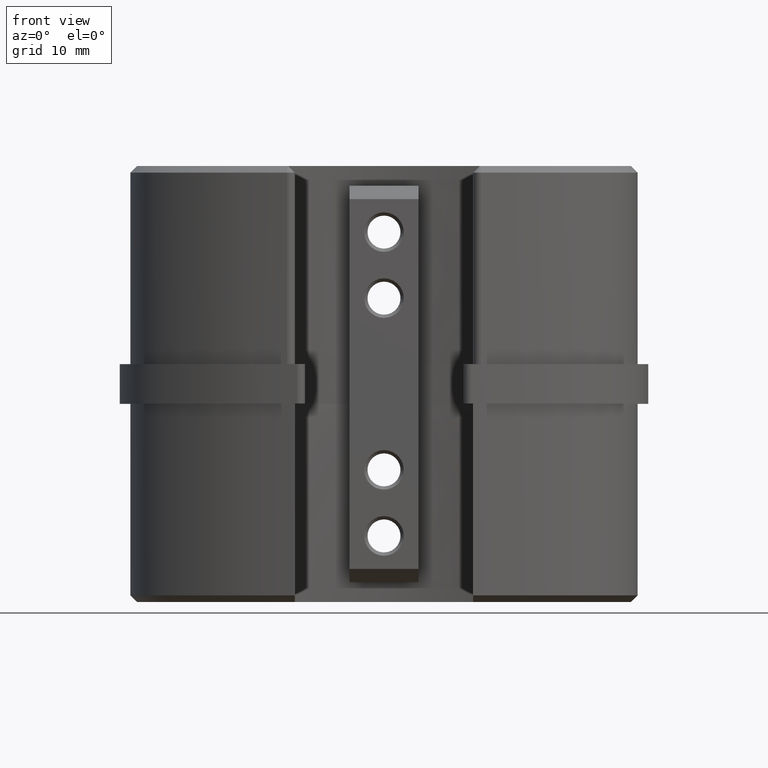
[diagram: clean part render]
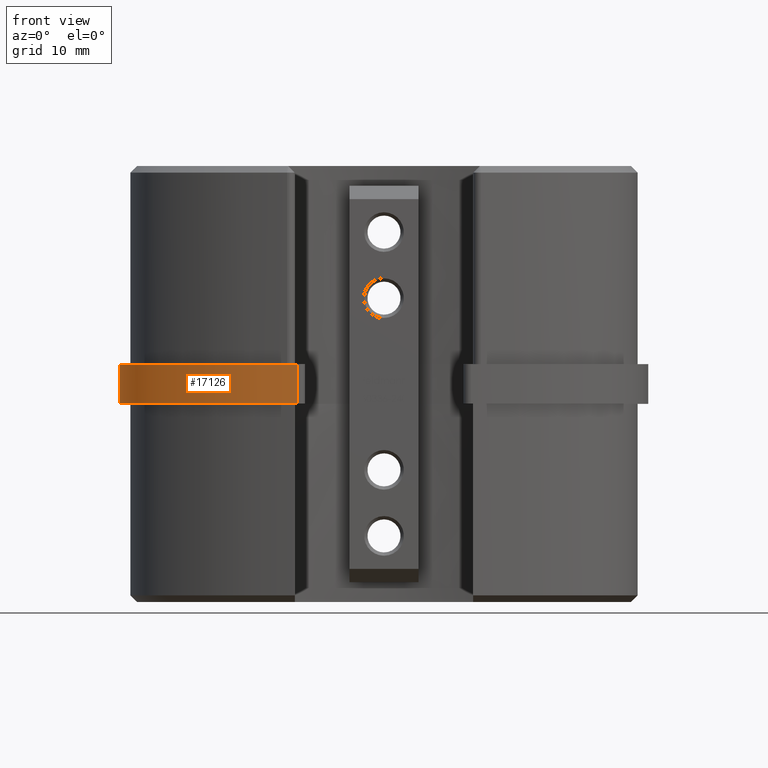
[diagram: same view with one face highlighted and labeled with its STEP entity id]
A machine part, front view. The second image highlights one B-rep face of the part: STEP entity #17126.
In plain terms, the highlighted face is a freeform B-spline surface patch.
Its self-contained STEP definition (entity closure, byte-faithful):
#4157 = LINE ( 'NONE', #23541, #18632 ) ;
#4612 = CARTESIAN_POINT ( 'NONE',  ( -39.99999999999998579, -6.100589991148875235, 3.000000000000000000 ) ) ;
#5298 = CARTESIAN_POINT ( 'NONE',  ( -29.80116491168280746, -22.08542813420000073, -3.000000000000000444 ) ) ;
#5676 = CARTESIAN_POINT ( 'NONE',  ( -39.99999999999998579, -6.100589991148875235, 3.000000000000000000 ) ) ;
#7243 =( BOUNDED_SURFACE ( )  B_SPLINE_SURFACE ( 3, 1, ( 
 ( #5676, #25883 ),
 ( #21998, #9660 ),
 ( #15595, #15757 ),
 ( #21663, #24033 ) ),
 .UNSPECIFIED., .F., .F., .F. ) 
 B_SPLINE_SURFACE_WITH_KNOTS ( ( 4, 4 ),
 ( 2, 2 ),
 ( 0.000000000000000000, 1.000000000000000000 ),
 ( 0.000000000000000000, 1.000000000000000000 ),
 .UNSPECIFIED. ) 
 GEOMETRIC_REPRESENTATION_ITEM ( )  RATIONAL_B_SPLINE_SURFACE ( (
 ( 1.000000000000000000, 1.000000000000000000),
 ( 0.8768393410884838257, 0.8768393410884838257),
 ( 0.8768393410884838257, 0.8768393410884838257),
 ( 1.000000000000000000, 1.000000000000000000) ) ) 
 REPRESENTATION_ITEM ( '' )  SURFACE ( )  );
#8122 = EDGE_LOOP ( 'NONE', ( #11031, #9781, #21046, #16768 ) ) ;
#8587 = DIRECTION ( 'NONE',  ( -0.000000000000000000, -0.000000000000000000, -1.000000000000000000 ) ) ;
#8842 = CARTESIAN_POINT ( 'NONE',  ( -13.17178048386952582, -24.98513525231914301, -3.000000000000000000 ) ) ;
#9109 = CARTESIAN_POINT ( 'NONE',  ( -39.99999999999999289, -14.90640670414435931, -3.000000000000000444 ) ) ;
#9159 =( BOUNDED_CURVE ( )  B_SPLINE_CURVE ( 3, ( #15304, #9109, #5298, #8842 ),
 .UNSPECIFIED., .F., .T. ) 
 B_SPLINE_CURVE_WITH_KNOTS ( ( 4, 4 ),
 ( 3.141592653589793116, 4.376832661674438185 ),
 .UNSPECIFIED. ) 
 CURVE ( )  GEOMETRIC_REPRESENTATION_ITEM ( )  RATIONAL_B_SPLINE_CURVE ( ( 1.000000000000000000, 0.8768393410884838257, 0.8768393410884838257, 1.000000000000000000 ) ) 
 REPRESENTATION_ITEM ( '' )  );
#9499 =( BOUNDED_CURVE ( )  B_SPLINE_CURVE ( 3, ( #25311, #25135, #19212, #15436 ),
 .UNSPECIFIED., .F., .T. ) 
 B_SPLINE_CURVE_WITH_KNOTS ( ( 4, 4 ),
 ( 3.141592653589793116, 4.376832661674438185 ),
 .UNSPECIFIED. ) 
 CURVE ( )  GEOMETRIC_REPRESENTATION_ITEM ( )  RATIONAL_B_SPLINE_CURVE ( ( 1.000000000000000000, 0.8768393410884838257, 0.8768393410884838257, 1.000000000000000000 ) ) 
 REPRESENTATION_ITEM ( '' )  );
#9561 = LINE ( 'NONE', #4612, #10806 ) ;
#9660 = CARTESIAN_POINT ( 'NONE',  ( -39.99999999999999289, -14.90640670414435931, -3.000000000000000444 ) ) ;
#9781 = ORIENTED_EDGE ( 'NONE', *, *, #12726, .T. ) ;
#10806 = VECTOR ( 'NONE', #8587, 1000.000000000000000 ) ;
#11031 = ORIENTED_EDGE ( 'NONE', *, *, #12327, .F. ) ;
#12327 = EDGE_CURVE ( 'NONE', #19421, #14712, #9499, .T. ) ;
#12387 = CARTESIAN_POINT ( 'NONE',  ( -13.17178048386952582, -24.98513525231914301, 3.000000000000000000 ) ) ;
#12726 = EDGE_CURVE ( 'NONE', #19421, #15443, #9561, .T. ) ;
#14712 = VERTEX_POINT ( 'NONE', #12387 ) ;
#15304 = CARTESIAN_POINT ( 'NONE',  ( -39.99999999999998579, -6.100589991148875235, -3.000000000000000000 ) ) ;
#15436 = CARTESIAN_POINT ( 'NONE',  ( -13.17178048386952582, -24.98513525231914301, 3.000000000000000000 ) ) ;
#15443 = VERTEX_POINT ( 'NONE', #18237 ) ;
#15595 = CARTESIAN_POINT ( 'NONE',  ( -29.80116491168280390, -22.08542813420000073, 3.000000000000000444 ) ) ;
#15757 = CARTESIAN_POINT ( 'NONE',  ( -29.80116491168280390, -22.08542813420000073, -3.000000000000000444 ) ) ;
#15980 = CARTESIAN_POINT ( 'NONE',  ( -13.17178048386952582, -24.98513525231914301, -3.000000000000000000 ) ) ;
#16187 = EDGE_CURVE ( 'NONE', #15443, #16339, #9159, .T. ) ;
#16220 = CARTESIAN_POINT ( 'NONE',  ( -39.99999999999998579, -6.100589991148875235, 3.000000000000000000 ) ) ;
#16339 = VERTEX_POINT ( 'NONE', #15980 ) ;
#16405 = FACE_OUTER_BOUND ( 'NONE', #8122, .T. ) ;
#16768 = ORIENTED_EDGE ( 'NONE', *, *, #17110, .F. ) ;
#17110 = EDGE_CURVE ( 'NONE', #14712, #16339, #4157, .T. ) ;
#17126 = ADVANCED_FACE ( 'NONE', ( #16405 ), #7243, .F. ) ;
#18237 = CARTESIAN_POINT ( 'NONE',  ( -39.99999999999998579, -6.100589991148875235, -3.000000000000000000 ) ) ;
#18632 = VECTOR ( 'NONE', #21306, 1000.000000000000000 ) ;
#19212 = CARTESIAN_POINT ( 'NONE',  ( -29.80116491168280746, -22.08542813420000073, 3.000000000000000444 ) ) ;
#19421 = VERTEX_POINT ( 'NONE', #16220 ) ;
#21046 = ORIENTED_EDGE ( 'NONE', *, *, #16187, .T. ) ;
#21306 = DIRECTION ( 'NONE',  ( -0.000000000000000000, -0.000000000000000000, -1.000000000000000000 ) ) ;
#21663 = CARTESIAN_POINT ( 'NONE',  ( -13.17178048386952582, -24.98513525231914301, 3.000000000000000000 ) ) ;
#21998 = CARTESIAN_POINT ( 'NONE',  ( -39.99999999999999289, -14.90640670414435931, 3.000000000000000444 ) ) ;
#23541 = CARTESIAN_POINT ( 'NONE',  ( -13.17178048386952582, -24.98513525231914301, 3.000000000000000000 ) ) ;
#24033 = CARTESIAN_POINT ( 'NONE',  ( -13.17178048386952582, -24.98513525231914301, -3.000000000000000000 ) ) ;
#25135 = CARTESIAN_POINT ( 'NONE',  ( -39.99999999999999289, -14.90640670414435931, 3.000000000000000444 ) ) ;
#25311 = CARTESIAN_POINT ( 'NONE',  ( -39.99999999999998579, -6.100589991148875235, 3.000000000000000000 ) ) ;
#25883 = CARTESIAN_POINT ( 'NONE',  ( -39.99999999999998579, -6.100589991148875235, -3.000000000000000000 ) ) ;